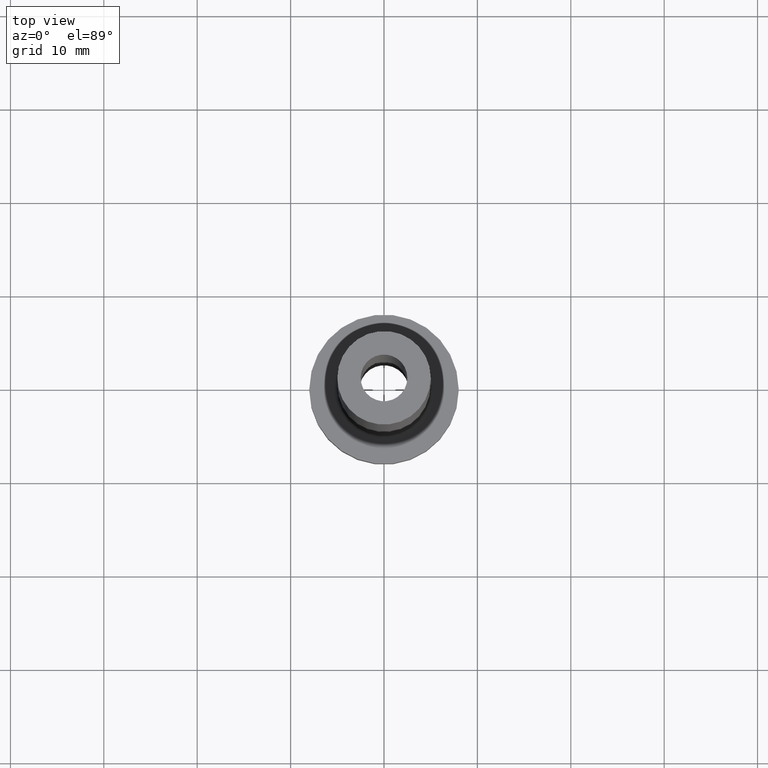
[diagram: clean part render]
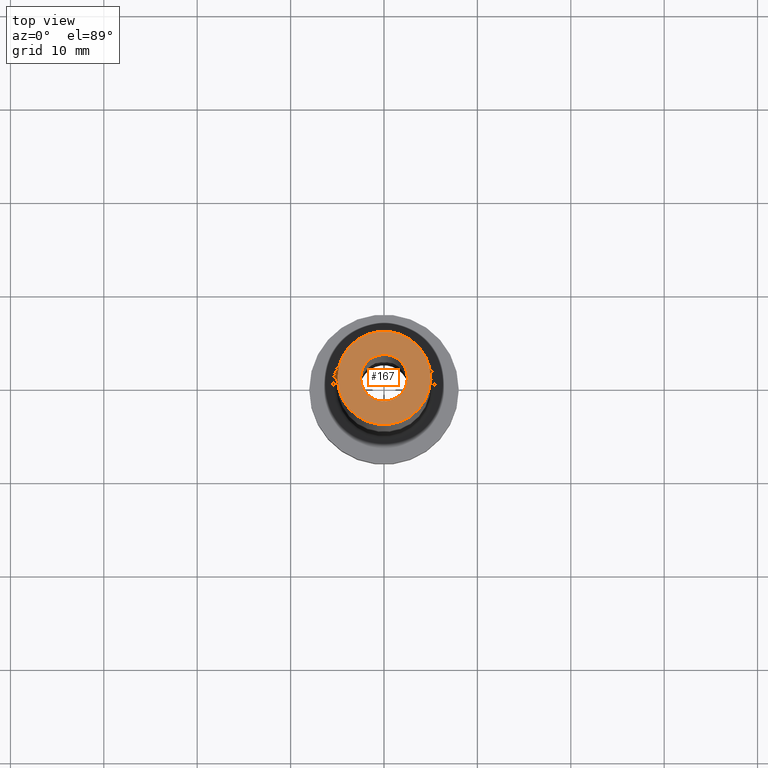
[diagram: same view with one face highlighted and labeled with its STEP entity id]
A machine part, top view. The second image highlights one B-rep face of the part: STEP entity #167.
In plain terms, the highlighted planar face has unit normal (0, 0, 1).
Its self-contained STEP definition (entity closure, byte-faithful):
#19 = FACE_BOUND ( 'NONE', #318, .T. ) ;
#24 = AXIS2_PLACEMENT_3D ( 'NONE', #393, #438, #32 ) ;
#28 = AXIS2_PLACEMENT_3D ( 'NONE', #260, #248, #396 ) ;
#32 = DIRECTION ( 'NONE',  ( 1.000000000000000000, 0.000000000000000000, 0.000000000000000000 ) ) ;
#44 = CARTESIAN_POINT ( 'NONE',  ( -2.500000000000000000, 0.000000000000000000, 75.00000000000001421 ) ) ;
#53 = ORIENTED_EDGE ( 'NONE', *, *, #402, .T. ) ;
#61 = ORIENTED_EDGE ( 'NONE', *, *, #142, .F. ) ;
#62 = AXIS2_PLACEMENT_3D ( 'NONE', #73, #178, #312 ) ;
#65 = VERTEX_POINT ( 'NONE', #163 ) ;
#73 = CARTESIAN_POINT ( 'NONE',  ( 0.000000000000000000, 0.000000000000000000, 75.00000000000001421 ) ) ;
#76 = CIRCLE ( 'NONE', #28, 2.500000000000000000 ) ;
#92 = EDGE_CURVE ( 'NONE', #125, #326, #405, .T. ) ;
#98 = PLANE ( 'NONE',  #301 ) ;
#125 = VERTEX_POINT ( 'NONE', #176 ) ;
#126 = CIRCLE ( 'NONE', #62, 5.000000000000000000 ) ;
#142 = EDGE_CURVE ( 'NONE', #417, #65, #76, .T. ) ;
#153 = FACE_OUTER_BOUND ( 'NONE', #348, .T. ) ;
#163 = CARTESIAN_POINT ( 'NONE',  ( 2.500000000000000000, 3.061616997868382648E-16, 75.00000000000001421 ) ) ;
#165 = DIRECTION ( 'NONE',  ( 0.000000000000000000, 0.000000000000000000, 1.000000000000000000 ) ) ;
#167 = ADVANCED_FACE ( 'NONE', ( #19, #153 ), #98, .T. ) ;
#176 = CARTESIAN_POINT ( 'NONE',  ( 5.000000000000000000, 6.123233995736766282E-16, 75.00000000000001421 ) ) ;
#178 = DIRECTION ( 'NONE',  ( 0.000000000000000000, 0.000000000000000000, 1.000000000000000000 ) ) ;
#185 = AXIS2_PLACEMENT_3D ( 'NONE', #330, #296, #212 ) ;
#201 = ORIENTED_EDGE ( 'NONE', *, *, #435, .F. ) ;
#212 = DIRECTION ( 'NONE',  ( 1.000000000000000000, 0.000000000000000000, 0.000000000000000000 ) ) ;
#248 = DIRECTION ( 'NONE',  ( 0.000000000000000000, 0.000000000000000000, 1.000000000000000000 ) ) ;
#260 = CARTESIAN_POINT ( 'NONE',  ( 0.000000000000000000, 0.000000000000000000, 75.00000000000001421 ) ) ;
#288 = CARTESIAN_POINT ( 'NONE',  ( -5.000000000000000000, 0.000000000000000000, 75.00000000000001421 ) ) ;
#296 = DIRECTION ( 'NONE',  ( 0.000000000000000000, 0.000000000000000000, 1.000000000000000000 ) ) ;
#301 = AXIS2_PLACEMENT_3D ( 'NONE', #418, #165, #381 ) ;
#312 = DIRECTION ( 'NONE',  ( 1.000000000000000000, 0.000000000000000000, 0.000000000000000000 ) ) ;
#318 = EDGE_LOOP ( 'NONE', ( #61, #201 ) ) ;
#326 = VERTEX_POINT ( 'NONE', #288 ) ;
#330 = CARTESIAN_POINT ( 'NONE',  ( 0.000000000000000000, 0.000000000000000000, 75.00000000000001421 ) ) ;
#338 = ORIENTED_EDGE ( 'NONE', *, *, #92, .T. ) ;
#348 = EDGE_LOOP ( 'NONE', ( #53, #338 ) ) ;
#375 = CIRCLE ( 'NONE', #24, 2.500000000000000000 ) ;
#381 = DIRECTION ( 'NONE',  ( 1.000000000000000000, 0.000000000000000000, -0.000000000000000000 ) ) ;
#393 = CARTESIAN_POINT ( 'NONE',  ( 0.000000000000000000, 0.000000000000000000, 75.00000000000001421 ) ) ;
#396 = DIRECTION ( 'NONE',  ( 1.000000000000000000, 0.000000000000000000, 0.000000000000000000 ) ) ;
#402 = EDGE_CURVE ( 'NONE', #326, #125, #126, .T. ) ;
#405 = CIRCLE ( 'NONE', #185, 5.000000000000000000 ) ;
#417 = VERTEX_POINT ( 'NONE', #44 ) ;
#418 = CARTESIAN_POINT ( 'NONE',  ( 0.000000000000000000, 0.000000000000000000, 75.00000000000001421 ) ) ;
#435 = EDGE_CURVE ( 'NONE', #65, #417, #375, .T. ) ;
#438 = DIRECTION ( 'NONE',  ( 0.000000000000000000, 0.000000000000000000, 1.000000000000000000 ) ) ;